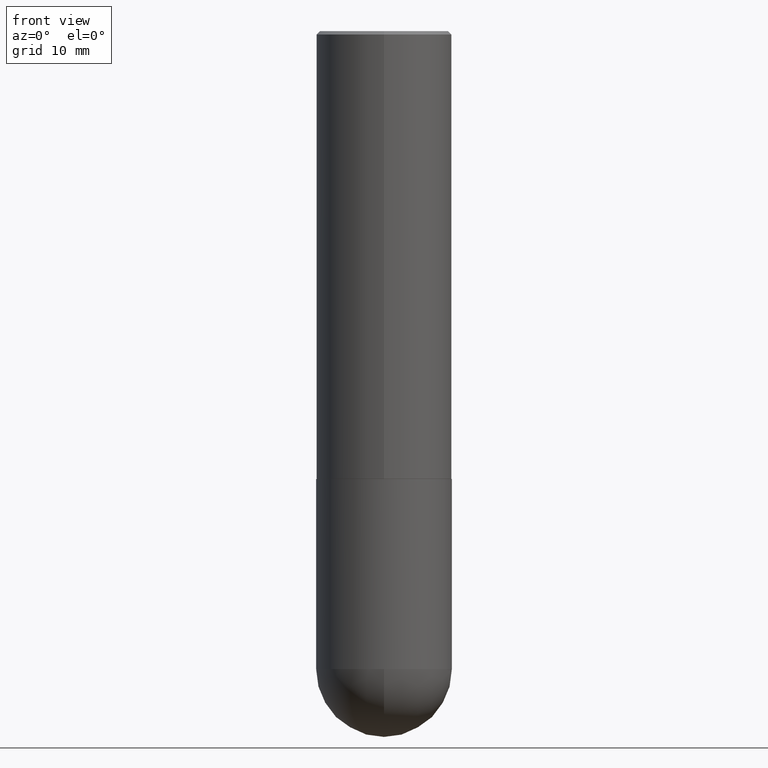
[diagram: clean part render]
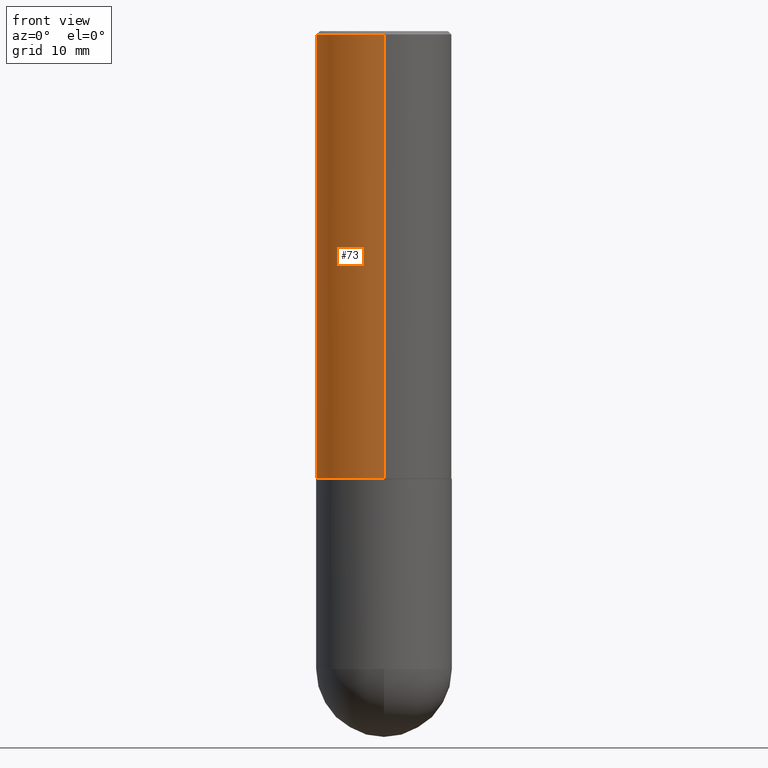
[diagram: same view with one face highlighted and labeled with its STEP entity id]
A machine part, front view. The second image highlights one B-rep face of the part: STEP entity #73.
In plain terms, the highlighted cylindrical surface (partial cylindrical patch) has radius 10 mm, axis along (-0, 0, 1).
Its self-contained STEP definition (entity closure, byte-faithful):
#12 = ORIENTED_EDGE ( 'NONE', *, *, #84, .F. ) ;
#17 = CARTESIAN_POINT ( 'NONE',  ( 6.349752936603663586E-29, -9.071792033989200442E-15, -2.597400000000000375 ) ) ;
#21 = FACE_OUTER_BOUND ( 'NONE', #78, .T. ) ;
#32 = CARTESIAN_POINT ( 'NONE',  ( -2.749192406205021291E-15, -0.3937000000000093758, -2.597399999999999043 ) ) ;
#39 = VERTEX_POINT ( 'NONE', #333 ) ;
#50 = DIRECTION ( 'NONE',  ( -2.444657325249735282E-29, 3.492643425729266472E-15, 1.000000000000000000 ) ) ;
#57 = DIRECTION ( 'NONE',  ( -6.982962677686265922E-15, -1.000000000000000000, 4.163344669033672479E-15 ) ) ;
#67 = EDGE_CURVE ( 'NONE', #357, #356, #272, .T. ) ;
#73 = ADVANCED_FACE ( 'NONE', ( #21 ), #85, .T. ) ;
#78 = EDGE_LOOP ( 'NONE', ( #377, #388, #155, #12 ) ) ;
#84 = EDGE_CURVE ( 'NONE', #356, #39, #259, .T. ) ;
#85 = CYLINDRICAL_SURFACE ( 'NONE', #187, 0.3937000000000001609 ) ;
#96 = VECTOR ( 'NONE', #110, 39.37007874015748143 ) ;
#105 = DIRECTION ( 'NONE',  ( -2.444657325249735563E-29, 3.492643425729266472E-15, 1.000000000000000000 ) ) ;
#108 = CARTESIAN_POINT ( 'NONE',  ( -2.749192406205084005E-15, -0.3937000000000001609, 1.375053716709612699E-15 ) ) ;
#110 = DIRECTION ( 'NONE',  ( -2.444657325249735282E-29, 3.492643425729266472E-15, 1.000000000000000000 ) ) ;
#113 = CARTESIAN_POINT ( 'NONE',  ( 2.797406750687515181E-15, 0.3937000000000001609, -1.375053716709612699E-15 ) ) ;
#139 = CARTESIAN_POINT ( 'NONE',  ( 0.000000000000000000, 0.000000000000000000, 0.000000000000000000 ) ) ;
#155 = ORIENTED_EDGE ( 'NONE', *, *, #219, .T. ) ;
#171 = DIRECTION ( 'NONE',  ( -6.982962677686265922E-15, -1.000000000000000000, 3.492643425729266472E-15 ) ) ;
#187 = AXIS2_PLACEMENT_3D ( 'NONE', #139, #105, #171 ) ;
#208 = EDGE_CURVE ( 'NONE', #357, #323, #240, .T. ) ;
#219 = EDGE_CURVE ( 'NONE', #323, #39, #396, .T. ) ;
#240 = CIRCLE ( 'NONE', #348, 0.3937000000000002720 ) ;
#243 = VECTOR ( 'NONE', #50, 39.37007874015748143 ) ;
#254 = AXIS2_PLACEMENT_3D ( 'NONE', #366, #367, #362 ) ;
#259 = CIRCLE ( 'NONE', #254, 0.3937000000000000499 ) ;
#270 = DIRECTION ( 'NONE',  ( -2.444657325249735563E-29, 3.492643425729266472E-15, 1.000000000000000000 ) ) ;
#272 = LINE ( 'NONE', #113, #243 ) ;
#323 = VERTEX_POINT ( 'NONE', #32 ) ;
#333 = CARTESIAN_POINT ( 'NONE',  ( -2.700978061722651252E-15, -0.3937000000000001054, -0.01999999999999871672 ) ) ;
#347 = CARTESIAN_POINT ( 'NONE',  ( 2.797406750687547524E-15, 0.3936999999999912236, -2.597400000000002152 ) ) ;
#348 = AXIS2_PLACEMENT_3D ( 'NONE', #17, #270, #57 ) ;
#356 = VERTEX_POINT ( 'NONE', #380 ) ;
#357 = VERTEX_POINT ( 'NONE', #347 ) ;
#362 = DIRECTION ( 'NONE',  ( -6.982962677686265133E-15, -1.000000000000000000, 3.491137977679279424E-15 ) ) ;
#366 = CARTESIAN_POINT ( 'NONE',  ( 4.889314650499493511E-31, -6.985286851458564351E-17, -0.02000000000000009062 ) ) ;
#367 = DIRECTION ( 'NONE',  ( -2.444657325249735563E-29, 3.492643425729266472E-15, 1.000000000000000000 ) ) ;
#377 = ORIENTED_EDGE ( 'NONE', *, *, #67, .F. ) ;
#380 = CARTESIAN_POINT ( 'NONE',  ( 2.749192406205083217E-15, 0.3936999999999999389, -0.02000000000000146452 ) ) ;
#388 = ORIENTED_EDGE ( 'NONE', *, *, #208, .T. ) ;
#396 = LINE ( 'NONE', #108, #96 ) ;